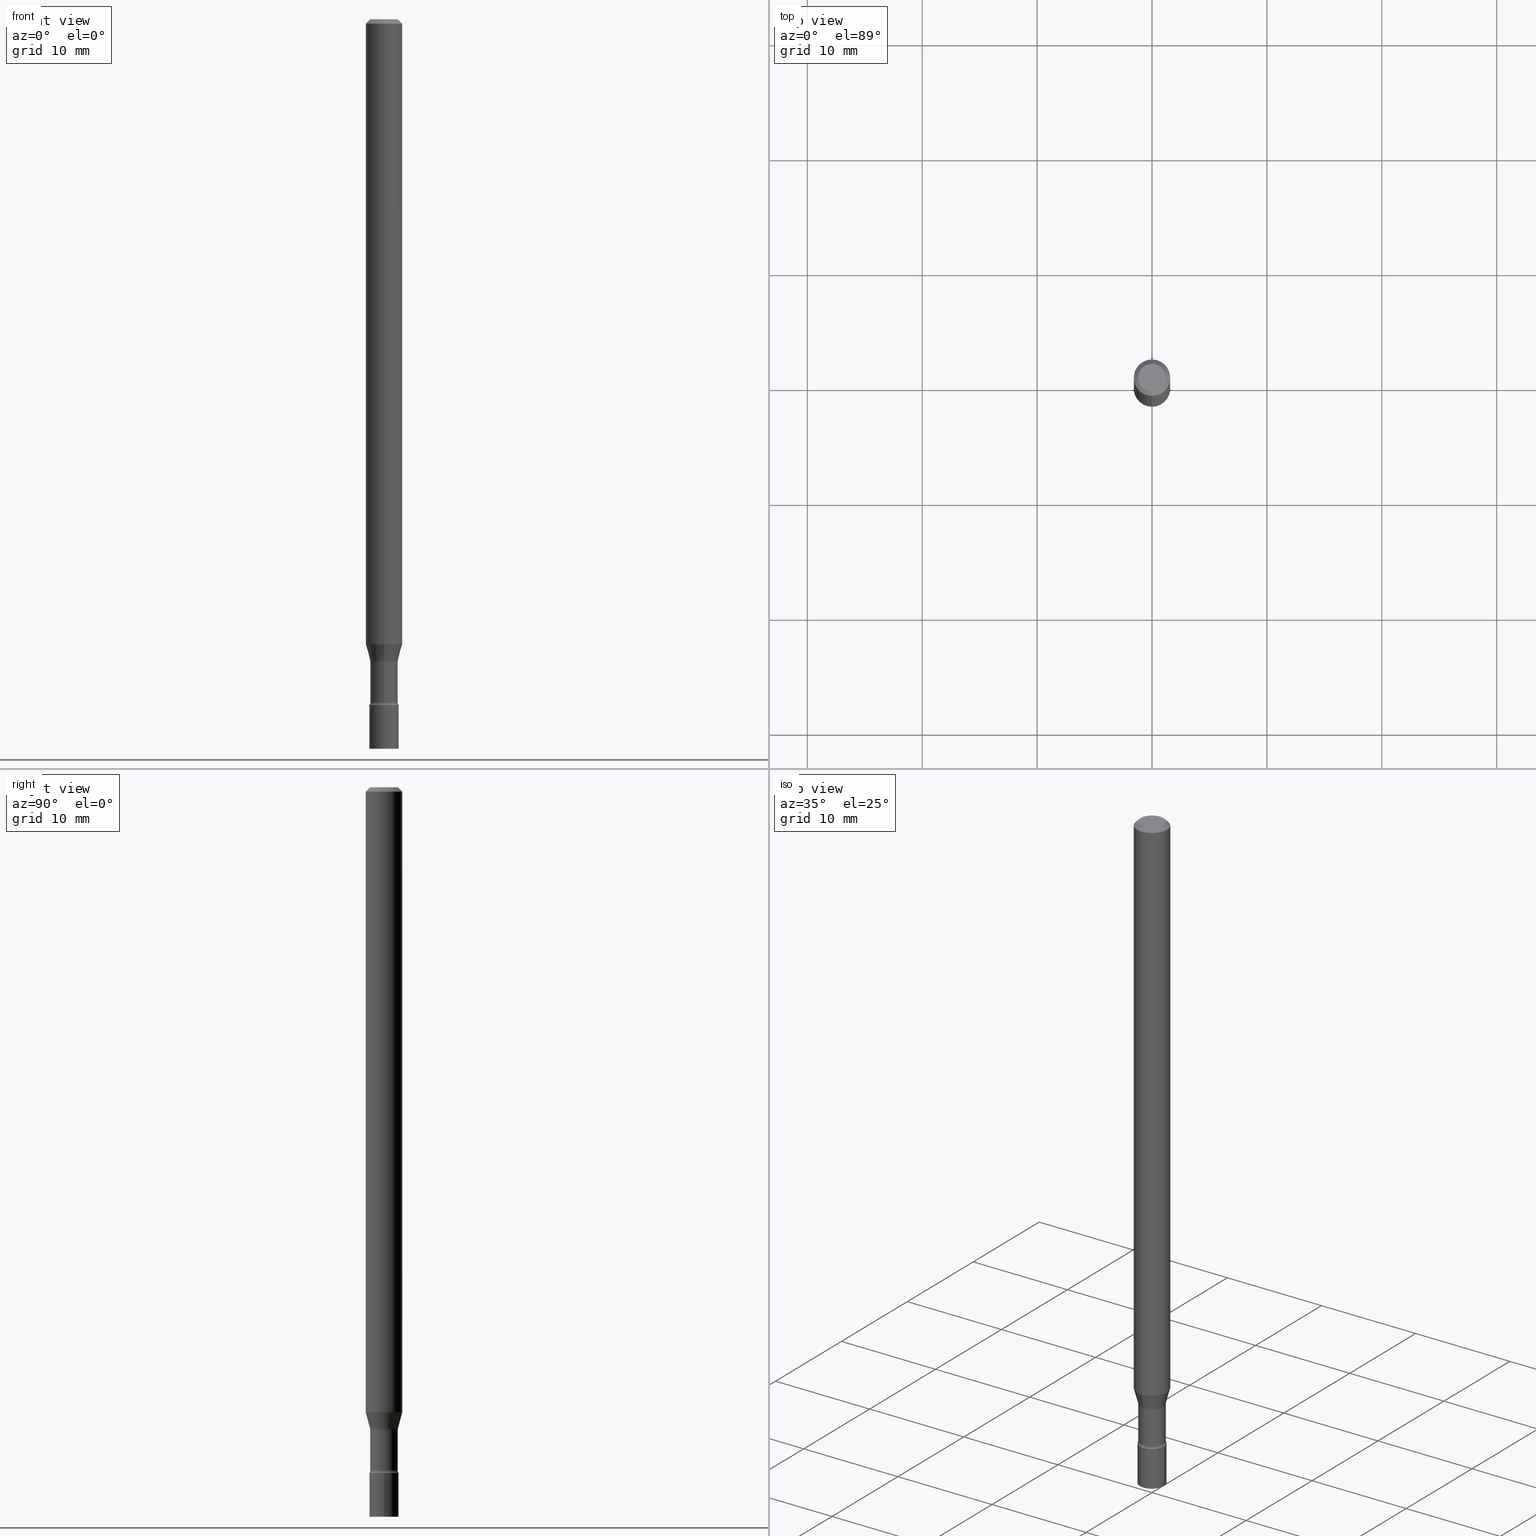
[diagram: canonical four-view strip — front | top / right | iso, engineering-drawing reading convention]
A machine part, canonical four-view strip (front | top / right | iso — engineering-drawing reading convention). The complete STEP part file that produces these views, byte-faithful:
ISO-10303-21;
HEADER;
FILE_DESCRIPTION (( 'STEP AP203' ),
    '1' );
FILE_NAME ('03531.STEP',
    '2024-03-08T21:41:14',
    ( '' ),
    ( '' ),
    'SwSTEP 2.0',
    'SolidWorks 2023',
    '' );
FILE_SCHEMA (( 'CONFIG_CONTROL_DESIGN' ));
ENDSEC;

DATA;
#1 = PERSON_AND_ORGANIZATION_ROLE ( 'design_supplier' ) ;
#2 = MANIFOLD_SOLID_BREP ( 'Body-Move/Copy2[1]', #45 ) ;
#3 = AXIS2_PLACEMENT_3D ( 'NONE', #288, #335, #298 ) ;
#4 = CC_DESIGN_APPROVAL ( #177, ( #82 ) ) ;
#5 = PRODUCT_RELATED_PRODUCT_CATEGORY ( 'detail', '', ( #251 ) ) ;
#6 = EDGE_CURVE ( 'NONE', #271, #214, #404, .T. ) ;
#7 = DIRECTION ( 'NONE',  ( 6.982962677686265922E-15, 1.000000000000000000, -3.483106191921935554E-15 ) ) ;
#8 = CYLINDRICAL_SURFACE ( 'NONE', #212, 0.04699999999999999317 ) ;
#9 = DIRECTION ( 'NONE',  ( 1.000000000000000000, -6.982962677686274599E-15, 0.000000000000000000 ) ) ;
#10 = CC_DESIGN_PERSON_AND_ORGANIZATION_ASSIGNMENT ( #473, #1, ( #82 ) ) ;
#11 = CONICAL_SURFACE ( 'NONE', #372, 0.04751111260566398542, 0.2617993877991498519 ) ;
#12 = CIRCLE ( 'NONE', #505, 0.04699999999999998623 ) ;
#13 = DIRECTION ( 'NONE',  ( -6.982962677686265922E-15, -1.000000000000000000, 3.491506315456644838E-15 ) ) ;
#14 = FACE_OUTER_BOUND ( 'NONE', #158, .T. ) ;
#15 = CARTESIAN_POINT ( 'NONE',  ( -0.05000000000000000278, -8.111570878814577955E-15, -2.500000000000000000 ) ) ;
#16 = FACE_OUTER_BOUND ( 'NONE', #520, .T. ) ;
#17 = ORIENTED_EDGE ( 'NONE', *, *, #399, .T. ) ;
#18 = DIRECTION ( 'NONE',  ( -6.982962677686265133E-15, -1.000000000000000000, 5.749913744050247464E-15 ) ) ;
#19 = CARTESIAN_POINT ( 'NONE',  ( 5.375328309131870760E-29, -7.674653851948160120E-15, -2.198092501787273001 ) ) ;
#20 = DIRECTION ( 'NONE',  ( 1.000000000000000000, -6.982962677686267499E-15, 4.876176775795936353E-29 ) ) ;
#21 = ORIENTED_EDGE ( 'NONE', *, *, #6, .F. ) ;
#22 = EDGE_CURVE ( 'NONE', #483, #386, #268, .T. ) ;
#23 = CARTESIAN_POINT ( 'NONE',  ( 3.375867592984003447E-16, 0.04751111260565630406, -2.198092501787273445 ) ) ;
#24 = CYLINDRICAL_SURFACE ( 'NONE', #407, 0.06250000000000000000 ) ;
#25 = CONICAL_SURFACE ( 'NONE', #262, 0.06250000000000000000, 0.7853981633974483900 ) ;
#26 = EDGE_LOOP ( 'NONE', ( #513, #510, #346, #275 ) ) ;
#27 = DIRECTION ( 'NONE',  ( -4.851104656540964275E-15, -0.7071067811865500152, -0.7071067811865450192 ) ) ;
#28 = PLANE ( 'NONE',  #465 ) ;
#29 = EDGE_CURVE ( 'NONE', #287, #137, #125, .T. ) ;
#30 = DIRECTION ( 'NONE',  ( -2.438088387897960049E-29, 3.491481338843145188E-15, 1.000000000000000000 ) ) ;
#31 = LENGTH_MEASURE_WITH_UNIT ( LENGTH_MEASURE( 0.02539999999999999897 ), #258 );
#32 = EDGE_CURVE ( 'NONE', #432, #306, #123, .T. ) ;
#33 = DIRECTION ( 'NONE',  ( -2.445451365109148725E-29, 3.491506315456644838E-15, 1.000000000000000000 ) ) ;
#34 = AXIS2_PLACEMENT_3D ( 'NONE', #496, #341, #9 ) ;
#35 = CC_DESIGN_APPROVAL ( #325, ( #512 ) ) ;
#36 = PERSON_AND_ORGANIZATION_ROLE ( 'classification_officer' ) ;
#37 = EDGE_CURVE ( 'NONE', #432, #283, #102, .T. ) ;
#38 = PERSON_AND_ORGANIZATION ( #265, #190 ) ;
#39 = CARTESIAN_POINT ( 'NONE',  ( 3.840629472727447874E-16, 0.04749999999999999362, -1.947592745229183872E-16 ) ) ;
#40 = ORIENTED_EDGE ( 'NONE', *, *, #226, .F. ) ;
#41 = ADVANCED_FACE ( 'NONE', ( #184 ), #462, .T. ) ;
#42 = COORDINATED_UNIVERSAL_TIME_OFFSET ( 5, 0, .BEHIND. ) ;
#43 = ORIENTED_EDGE ( 'NONE', *, *, #451, .T. ) ;
#44 = ORIENTED_EDGE ( 'NONE', *, *, #272, .F. ) ;
#45 = CLOSED_SHELL ( 'NONE', ( #118, #41, #354, #223 ) ) ;
#46 = DIRECTION ( 'NONE',  ( -6.982962677686265922E-15, -1.000000000000000000, 3.491506315456644838E-15 ) ) ;
#47 = CIRCLE ( 'NONE', #197, 0.05000000000000000278 ) ;
#48 = DATE_TIME_ROLE ( 'creation_date' ) ;
#49 = CARTESIAN_POINT ( 'NONE',  ( 0.000000000000000000, 0.000000000000000000, 0.000000000000000000 ) ) ;
#50 = CYLINDRICAL_SURFACE ( 'NONE', #174, 0.06250000000000000000 ) ;
#51 = CARTESIAN_POINT ( 'NONE',  ( 5.375328309131870760E-29, -7.674653851948160120E-15, -2.198092501787273001 ) ) ;
#52 = CARTESIAN_POINT ( 'NONE',  ( 4.440892098500625669E-16, 0.06250000000000000000, -2.182191447160403024E-16 ) ) ;
#53 = ORIENTED_EDGE ( 'NONE', *, *, #434, .T. ) ;
#54 = CIRCLE ( 'NONE', #132, 0.06250000000000000000 ) ;
#55 = EDGE_CURVE ( 'NONE', #448, #474, #387, .T. ) ;
#56 = CARTESIAN_POINT ( 'NONE',  ( 0.000000000000000000, 0.000000000000000000, 0.000000000000000000 ) ) ;
#57 = DIRECTION ( 'NONE',  ( 2.438088387897960049E-29, -3.491481338843145188E-15, -1.000000000000000000 ) ) ;
#58 = FACE_OUTER_BOUND ( 'NONE', #91, .T. ) ;
#59 = ORIENTED_EDGE ( 'NONE', *, *, #296, .F. ) ;
#60 = DIRECTION ( 'NONE',  ( -6.982962677686265922E-15, -1.000000000000000000, 5.812442539711200167E-15 ) ) ;
#61 = CIRCLE ( 'NONE', #315, 0.01500000000000002720 ) ;
#62 = AXIS2_PLACEMENT_3D ( 'NONE', #78, #142, #463 ) ;
#63 = DIMENSIONAL_EXPONENTS ( 1.000000000000000000, 0.000000000000000000, 0.000000000000000000, 0.000000000000000000, 0.000000000000000000, 0.000000000000000000, 0.000000000000000000 ) ;
#64 = DIRECTION ( 'NONE',  ( -6.982962677686265922E-15, -1.000000000000000000, 3.483106191921935554E-15 ) ) ;
#65 = CYLINDRICAL_SURFACE ( 'NONE', #113, 0.04699999999999999317 ) ;
#66 = DIRECTION ( 'NONE',  ( -6.982962677686265922E-15, -1.000000000000000000, 4.370956789862821150E-15 ) ) ;
#67 = DIRECTION ( 'NONE',  ( -6.982962677686265133E-15, -1.000000000000000000, 5.749913744050247464E-15 ) ) ;
#68 = EDGE_CURVE ( 'NONE', #306, #432, #480, .T. ) ;
#69 = DIRECTION ( 'NONE',  ( -6.982962677686265922E-15, -1.000000000000000000, 5.812442539711200167E-15 ) ) ;
#70 = VERTEX_POINT ( 'NONE', #349 ) ;
#71 = CONICAL_SURFACE ( 'NONE', #309, 0.06250000000000000000, 0.7853981633974483900 ) ;
#72 = DIRECTION ( 'NONE',  ( -2.445468806185136597E-29, 3.491481338843145583E-15, 1.000000000000000000 ) ) ;
#73 = SECURITY_CLASSIFICATION ( '', '', #435 ) ;
#74 = EDGE_CURVE ( 'NONE', #214, #355, #344, .T. ) ;
#75 = LINE ( 'NONE', #152, #109 ) ;
#76 = CARTESIAN_POINT ( 'NONE',  ( 5.384822249939303966E-29, -7.688208876906198514E-15, -2.201974787463810923 ) ) ;
#77 = CC_DESIGN_PERSON_AND_ORGANIZATION_ASSIGNMENT ( #281, #229, ( #251 ) ) ;
#78 = CARTESIAN_POINT ( 'NONE',  ( 5.384822249939303966E-29, -7.688208876906198514E-15, -2.201974787463810923 ) ) ;
#79 = EDGE_CURVE ( 'NONE', #128, #355, #75, .T. ) ;
#80 = CARTESIAN_POINT ( 'NONE',  ( 5.746851694535070554E-29, -8.204981146281391784E-15, -2.350000000000000089 ) ) ;
#81 = APPROVAL_ROLE ( '' ) ;
#82 = PRODUCT_DEFINITION_FORMATION_WITH_SPECIFIED_SOURCE ( 'ANY', '', #251, .NOT_KNOWN. ) ;
#83 = ORIENTED_EDGE ( 'NONE', *, *, #74, .T. ) ;
#84 = VERTEX_POINT ( 'NONE', #264 ) ;
#85 = CARTESIAN_POINT ( 'NONE',  ( 5.724842475279404612E-29, -8.173557814231803142E-15, -2.341000000000000192 ) ) ;
#86 = CALENDAR_DATE ( 2024, 8, 3 ) ;
#87 = ORIENTED_EDGE ( 'NONE', *, *, #475, .F. ) ;
#88 = APPLICATION_PROTOCOL_DEFINITION ( 'international standard', 'config_control_design', 1994, #322 ) ;
#89 = FACE_OUTER_BOUND ( 'NONE', #293, .T. ) ;
#90 = AXIS2_PLACEMENT_3D ( 'NONE', #94, #408, #99 ) ;
#91 = EDGE_LOOP ( 'NONE', ( #108, #153, #324, #144 ) ) ;
#92 = VERTEX_POINT ( 'NONE', #39 ) ;
#93 = EDGE_LOOP ( 'NONE', ( #21, #105, #493, #332 ) ) ;
#94 = CARTESIAN_POINT ( 'NONE',  ( 5.746810708006499965E-29, -8.205039841323115903E-15, -2.350000000000000089 ) ) ;
#95 = CIRCLE ( 'NONE', #454, 0.04749999999999999362 ) ;
#96 = LINE ( 'NONE', #215, #504 ) ;
#97 = CARTESIAN_POINT ( 'NONE',  ( 0.000000000000000000, 0.000000000000000000, 0.000000000000000000 ) ) ;
#98 = PLANE ( 'NONE',  #392 ) ;
#99 = DIRECTION ( 'NONE',  ( -6.982962677686265133E-15, -1.000000000000000000, 5.463695987328526437E-15 ) ) ;
#100 = LINE ( 'NONE', #176, #175 ) ;
#101 = LOCAL_TIME ( 16, 41, 14.00000000000000000, #150 ) ;
#102 = LINE ( 'NONE', #23, #202 ) ;
#103 = CARTESIAN_POINT ( 'NONE',  ( 0.000000000000000000, 0.000000000000000000, 0.000000000000000000 ) ) ;
#104 = ORIENTED_EDGE ( 'NONE', *, *, #488, .F. ) ;
#105 = ORIENTED_EDGE ( 'NONE', *, *, #286, .T. ) ;
#106 = CARTESIAN_POINT ( 'NONE',  ( 5.384860654748895550E-29, -7.688153879032997927E-15, -2.201974787463810923 ) ) ;
#107 = ADVANCED_FACE ( 'NONE', ( #414 ), #65, .T. ) ;
#108 = ORIENTED_EDGE ( 'NONE', *, *, #232, .T. ) ;
#109 = VECTOR ( 'NONE', #192, 39.37007874015748143 ) ;
#110 = CARTESIAN_POINT ( 'NONE',  ( 3.668177047663730198E-31, -5.237259473184978080E-17, -0.01500000000000003067 ) ) ;
#111 = DIRECTION ( 'NONE',  ( -6.982962677686265922E-15, -1.000000000000000000, 3.491506315456644838E-15 ) ) ;
#112 = CALENDAR_DATE ( 2024, 8, 3 ) ;
#113 = AXIS2_PLACEMENT_3D ( 'NONE', #97, #210, #173 ) ;
#114 = AXIS2_PLACEMENT_3D ( 'NONE', #19, #263, #180 ) ;
#115 = EDGE_LOOP ( 'NONE', ( #135, #320 ) ) ;
#116 = DIRECTION ( 'NONE',  ( 1.000000000000000000, 0.000000000000000000, 0.000000000000000000 ) ) ;
#117 = DESIGN_CONTEXT ( 'detailed design', #322, 'design' ) ;
#118 = ADVANCED_FACE ( 'NONE', ( #58 ), #127, .T. ) ;
#119 = ORIENTED_EDGE ( 'NONE', *, *, #434, .F. ) ;
#120 = CARTESIAN_POINT ( 'NONE',  ( 0.000000000000000000, 0.000000000000000000, 0.000000000000000000 ) ) ;
#121 = ORIENTED_EDGE ( 'NONE', *, *, #475, .T. ) ;
#122 = FACE_OUTER_BOUND ( 'NONE', #360, .T. ) ;
#123 = CIRCLE ( 'NONE', #189, 0.04751111260566398542 ) ;
#124 =( GEOMETRIC_REPRESENTATION_CONTEXT ( 3 ) GLOBAL_UNCERTAINTY_ASSIGNED_CONTEXT ( ( #273 ) ) GLOBAL_UNIT_ASSIGNED_CONTEXT ( ( #148, #237, #164 ) ) REPRESENTATION_CONTEXT ( 'NONE', 'WORKASPACE' ) );
#125 = LINE ( 'NONE', #284, #365 ) ;
#126 = DIRECTION ( 'NONE',  ( -2.445451365109148725E-29, 3.491506315456644838E-15, 1.000000000000000000 ) ) ;
#127 = CYLINDRICAL_SURFACE ( 'NONE', #252, 0.05000000000000000278 ) ;
#128 = VERTEX_POINT ( 'NONE', #375 ) ;
#129 = DIRECTION ( 'NONE',  ( 1.000000000000000000, -6.982962677686267499E-15, 4.876176775795936353E-29 ) ) ;
#130 = TOROIDAL_SURFACE ( 'NONE', #464, 0.06200000000000003425, 0.01500000000000004455 ) ;
#131 = CARTESIAN_POINT ( 'NONE',  ( 5.375328309131870760E-29, -7.674653851948160120E-15, -2.198092501787273001 ) ) ;
#132 = AXIS2_PLACEMENT_3D ( 'NONE', #416, #466, #66 ) ;
#133 = DIRECTION ( 'NONE',  ( -1.000000000000000000, 6.982962677686265922E-15, -4.883557194083112901E-29 ) ) ;
#134 = DIRECTION ( 'NONE',  ( -1.000000000000000000, 6.982962677686265922E-15, -4.883557194083112901E-29 ) ) ;
#135 = ORIENTED_EDGE ( 'NONE', *, *, #232, .F. ) ;
#136 = FACE_OUTER_BOUND ( 'NONE', #93, .T. ) ;
#137 = VERTEX_POINT ( 'NONE', #240 ) ;
#138 = ADVANCED_FACE ( 'NONE', ( #16 ), #336, .F. ) ;
#139 = CARTESIAN_POINT ( 'NONE',  ( 7.070466169225668055E-46, -1.009489603240264140E-31, -2.891272453872779785E-17 ) ) ;
#140 = AXIS2_PLACEMENT_3D ( 'NONE', #208, #134, #163 ) ;
#141 = DIRECTION ( 'NONE',  ( -6.982962677686265922E-15, -1.000000000000000000, 4.370956789862821150E-15 ) ) ;
#142 = DIRECTION ( 'NONE',  ( -2.445451365109148725E-29, 3.491506315456644838E-15, 1.000000000000000000 ) ) ;
#143 = ADVANCED_FACE ( 'NONE', ( #248 ), #71, .T. ) ;
#144 = ORIENTED_EDGE ( 'NONE', *, *, #79, .F. ) ;
#145 = CARTESIAN_POINT ( 'NONE',  ( 5.746851694535070554E-29, -8.204981146281391784E-15, -2.350000000000000089 ) ) ;
#146 = AXIS2_PLACEMENT_3D ( 'NONE', #331, #126, #64 ) ;
#147 = VECTOR ( 'NONE', #388, 39.37007874015748143 ) ;
#148 =( CONVERSION_BASED_UNIT ( 'INCH', #31 ) LENGTH_UNIT ( ) NAMED_UNIT ( #63 ) );
#149 = CARTESIAN_POINT ( 'NONE',  ( -3.491481338842559952E-16, -0.05000000000000822536, -2.349999999999999645 ) ) ;
#150 = COORDINATED_UNIVERSAL_TIME_OFFSET ( 5, 0, .BEHIND. ) ;
#151 = ADVANCED_FACE ( 'NONE', ( #14 ), #11, .T. ) ;
#152 = CARTESIAN_POINT ( 'NONE',  ( 0.05000000000000000278, -3.491481338843133848E-16, 2.438088387897968247E-30 ) ) ;
#153 = ORIENTED_EDGE ( 'NONE', *, *, #6, .T. ) ;
#154 = CALENDAR_DATE ( 2024, 8, 3 ) ;
#155 = CIRCLE ( 'NONE', #34, 0.05000000000000000278 ) ;
#156 = CC_DESIGN_SECURITY_CLASSIFICATION ( #73, ( #82 ) ) ;
#157 = ORIENTED_EDGE ( 'NONE', *, *, #369, .F. ) ;
#158 = EDGE_LOOP ( 'NONE', ( #491, #453, #104, #363 ) ) ;
#159 = ADVANCED_FACE ( 'NONE', ( #340 ), #98, .F. ) ;
#160 = PERSON_AND_ORGANIZATION_ROLE ( 'creator' ) ;
#161 = EDGE_LOOP ( 'NONE', ( #436, #353, #234, #87 ) ) ;
#162 = PERSON_AND_ORGANIZATION ( #265, #190 ) ;
#163 = DIRECTION ( 'NONE',  ( -6.982962677686264344E-15, -1.000000000000000000, 0.000000000000000000 ) ) ;
#164 =( NAMED_UNIT ( * ) SI_UNIT ( $, .STERADIAN. ) SOLID_ANGLE_UNIT ( ) );
#165 = AXIS2_PLACEMENT_3D ( 'NONE', #247, #455, #60 ) ;
#166 = ORIENTED_EDGE ( 'NONE', *, *, #399, .F. ) ;
#167 = ORIENTED_EDGE ( 'NONE', *, *, #445, .F. ) ;
#168 = CIRCLE ( 'NONE', #62, 0.04700000000000000705 ) ;
#169 = DIRECTION ( 'NONE',  ( -6.982962677686265133E-15, -1.000000000000000000, 5.749913744050247464E-15 ) ) ;
#170 = CARTESIAN_POINT ( 'NONE',  ( 3.491481338843744722E-16, 0.04999999999999128059, -2.500000000000000000 ) ) ;
#171 = CARTESIAN_POINT ( 'NONE',  ( -4.329436860164946253E-16, -0.06200000000000769479, -2.201974787463810923 ) ) ;
#172 = CARTESIAN_POINT ( 'NONE',  ( 3.446132268437058914E-16, 0.04699999999999181916, -2.341000000000000192 ) ) ;
#173 = DIRECTION ( 'NONE',  ( -6.982962677686266711E-15, -1.000000000000000000, 3.491506315456645233E-15 ) ) ;
#174 = AXIS2_PLACEMENT_3D ( 'NONE', #120, #323, #278 ) ;
#175 = VECTOR ( 'NONE', #339, 39.37007874015748143 ) ;
#176 = CARTESIAN_POINT ( 'NONE',  ( -4.364351673553916201E-16, -0.06250000000000000000, 2.182191447160403024E-16 ) ) ;
#177 = APPROVAL ( #509, 'UNSPECIFIED' ) ;
#178 = CARTESIAN_POINT ( 'NONE',  ( 4.440892098501151740E-16, 0.06249999999999255457, -2.142153212482682978 ) ) ;
#179 = EDGE_LOOP ( 'NONE', ( #249, #119 ) ) ;
#180 = DIRECTION ( 'NONE',  ( -6.982962677686265133E-15, -1.000000000000000000, 5.749913744050247464E-15 ) ) ;
#181 = CLOSED_SHELL ( 'NONE', ( #396, #107, #204, #319, #361, #151, #428, #196, #143, #159, #506, #138, #343, #307 ) ) ;
#182 = ORIENTED_EDGE ( 'NONE', *, *, #296, .T. ) ;
#183 = AXIS2_PLACEMENT_3D ( 'NONE', #110, #351, #499 ) ;
#184 = FACE_OUTER_BOUND ( 'NONE', #501, .T. ) ;
#185 = DIRECTION ( 'NONE',  ( -6.982962677686265922E-15, -1.000000000000000000, 3.491506315456645233E-15 ) ) ;
#186 = ORIENTED_EDGE ( 'NONE', *, *, #289, .T. ) ;
#187 = CARTESIAN_POINT ( 'NONE',  ( 5.375328309131870760E-29, -7.674653851948160120E-15, -2.198092501787273001 ) ) ;
#188 = CARTESIAN_POINT ( 'NONE',  ( 3.908379845742577100E-16, 0.04751111260565630406, -2.198092501787273445 ) ) ;
#189 = AXIS2_PLACEMENT_3D ( 'NONE', #51, #364, #169 ) ;
#190 = ORGANIZATION ( 'UNSPECIFIED', 'UNSPECIFIED', '' ) ;
#191 = CARTESIAN_POINT ( 'NONE',  ( 5.238531497738724756E-29, -7.479341470059026022E-15, -2.142153212482682534 ) ) ;
#192 = DIRECTION ( 'NONE',  ( -2.445468806185136877E-29, 3.491481338843145188E-15, 1.000000000000000000 ) ) ;
#193 = CC_DESIGN_DATE_AND_TIME_ASSIGNMENT ( #274, #48, ( #512 ) ) ;
#194 = APPROVAL_STATUS ( 'not_yet_approved' ) ;
#195 = PERSON_AND_ORGANIZATION ( #265, #190 ) ;
#196 = ADVANCED_FACE ( 'NONE', ( #122 ), #50, .T. ) ;
#197 = AXIS2_PLACEMENT_3D ( 'NONE', #420, #312, #350 ) ;
#198 = APPROVAL_DATE_TIME ( #427, #177 ) ;
#199 = ORIENTED_EDGE ( 'NONE', *, *, #37, .F. ) ;
#200 = ORIENTED_EDGE ( 'NONE', *, *, #314, .T. ) ;
#201 = CARTESIAN_POINT ( 'NONE',  ( -3.317683261006473026E-16, -0.04751111260567165984, -2.198092501787273001 ) ) ;
#202 = VECTOR ( 'NONE', #379, 39.37007874015748854 ) ;
#203 = CC_DESIGN_APPROVAL ( #492, ( #73 ) ) ;
#204 = ADVANCED_FACE ( 'NONE', ( #89 ), #130, .F. ) ;
#205 = DIRECTION ( 'NONE',  ( -2.445451365109148725E-29, 3.491506315456644838E-15, 1.000000000000000000 ) ) ;
#206 = EDGE_LOOP ( 'NONE', ( #199, #220, #477, #157 ) ) ;
#207 = CARTESIAN_POINT ( 'NONE',  ( 6.113672015462842613E-29, -8.728703347107864943E-15, -2.500000000000000000 ) ) ;
#208 = CARTESIAN_POINT ( 'NONE',  ( -4.329436860164914206E-16, -0.06200000000000820133, -2.340999999999999748 ) ) ;
#209 = FACE_OUTER_BOUND ( 'NONE', #277, .T. ) ;
#210 = DIRECTION ( 'NONE',  ( -2.445451365109148725E-29, 3.491506315456644838E-15, 1.000000000000000000 ) ) ;
#211 = AXIS2_PLACEMENT_3D ( 'NONE', #207, #409, #485 ) ;
#212 = AXIS2_PLACEMENT_3D ( 'NONE', #56, #205, #370 ) ;
#213 = VERTEX_POINT ( 'NONE', #279 ) ;
#214 = VERTEX_POINT ( 'NONE', #438 ) ;
#215 = CARTESIAN_POINT ( 'NONE',  ( -3.317683261006473026E-16, -0.04751111260567165984, -2.198092501787273001 ) ) ;
#216 = FACE_OUTER_BOUND ( 'NONE', #470, .T. ) ;
#217 = DIRECTION ( 'NONE',  ( -2.445468806185136597E-29, 3.491481338843145583E-15, 1.000000000000000000 ) ) ;
#218 = CARTESIAN_POINT ( 'NONE',  ( 5.724801645720516822E-29, -8.173616284484005646E-15, -2.341000000000000192 ) ) ;
#219 = VECTOR ( 'NONE', #244, 39.37007874015748143 ) ;
#220 = ORIENTED_EDGE ( 'NONE', *, *, #32, .T. ) ;
#221 = DIRECTION ( 'NONE',  ( 1.000000000000000000, -6.982962677686265922E-15, 4.876176775795935793E-29 ) ) ;
#222 = CARTESIAN_POINT ( 'NONE',  ( -3.281992458511971635E-16, -0.04700000000000816025, -2.340999999999999748 ) ) ;
#223 = ADVANCED_FACE ( 'NONE', ( #285 ), #516, .T. ) ;
#224 = CARTESIAN_POINT ( 'NONE',  ( 0.000000000000000000, 0.000000000000000000, 0.000000000000000000 ) ) ;
#225 = LINE ( 'NONE', #423, #147 ) ;
#226 = EDGE_CURVE ( 'NONE', #213, #474, #374, .T. ) ;
#227 = CIRCLE ( 'NONE', #3, 0.04749999999999999362 ) ;
#228 = CIRCLE ( 'NONE', #489, 0.05000000000000000278 ) ;
#229 = PERSON_AND_ORGANIZATION_ROLE ( 'design_owner' ) ;
#230 = DIRECTION ( 'NONE',  ( 0.000000000000000000, 0.000000000000000000, 1.000000000000000000 ) ) ;
#231 = EDGE_LOOP ( 'NONE', ( #186, #514, #257, #270 ) ) ;
#232 = EDGE_CURVE ( 'NONE', #128, #271, #439, .T. ) ;
#233 = APPROVAL_ROLE ( '' ) ;
#234 = ORIENTED_EDGE ( 'NONE', *, *, #383, .T. ) ;
#235 = APPROVAL_STATUS ( 'not_yet_approved' ) ;
#236 = AXIS2_PLACEMENT_3D ( 'NONE', #170, #57, #412 ) ;
#237 =( NAMED_UNIT ( * ) PLANE_ANGLE_UNIT ( ) SI_UNIT ( $, .RADIAN. ) );
#238 = DIRECTION ( 'NONE',  ( -1.807323732225327378E-15, -0.2588190451025177974, 0.9659258262890690894 ) ) ;
#239 = AXIS2_PLACEMENT_3D ( 'NONE', #305, #30, #221 ) ;
#240 = CARTESIAN_POINT ( 'NONE',  ( 3.339550858073043299E-16, 0.04699999999999231182, -2.201974787463811367 ) ) ;
#241 = AXIS2_PLACEMENT_3D ( 'NONE', #49, #230, #116 ) ;
#242 = EDGE_CURVE ( 'NONE', #306, #368, #96, .T. ) ;
#243 = CARTESIAN_POINT ( 'NONE',  ( -3.281992458512545038E-16, -0.04699999999999999317, 1.641007968264622993E-16 ) ) ;
#244 = DIRECTION ( 'NONE',  ( -2.445468806185136877E-29, 3.491481338843145188E-15, 1.000000000000000000 ) ) ;
#245 = PRODUCT_DEFINITION_SHAPE ( 'NONE', 'NONE',  #512 ) ;
#246 = CC_DESIGN_PERSON_AND_ORGANIZATION_ASSIGNMENT ( #195, #313, ( #82 ) ) ;
#247 = CARTESIAN_POINT ( 'NONE',  ( 5.724801645720516822E-29, -8.173616284484005646E-15, -2.341000000000000192 ) ) ;
#248 = FACE_OUTER_BOUND ( 'NONE', #486, .T. ) ;
#249 = ORIENTED_EDGE ( 'NONE', *, *, #314, .F. ) ;
#250 = CARTESIAN_POINT ( 'NONE',  ( 0.05000000000000000278, -8.554129280165706697E-15, -2.350000000000000089 ) ) ;
#251 = PRODUCT ( '03531', '03531', '', ( #478 ) ) ;
#252 = AXIS2_PLACEMENT_3D ( 'NONE', #103, #217, #20 ) ;
#253 = LOCAL_TIME ( 16, 41, 14.00000000000000000, #401 ) ;
#254 = ORIENTED_EDGE ( 'NONE', *, *, #383, .F. ) ;
#255 = CARTESIAN_POINT ( 'NONE',  ( 4.405364961713195510E-16, 0.06199999999999186023, -2.341000000000000192 ) ) ;
#256 = DIRECTION ( 'NONE',  ( -2.445451365109148725E-29, 3.491506315456644838E-15, 1.000000000000000000 ) ) ;
#257 = ORIENTED_EDGE ( 'NONE', *, *, #517, .F. ) ;
#258 =( LENGTH_UNIT ( ) NAMED_UNIT ( * ) SI_UNIT ( $, .METRE. ) );
#259 = ORIENTED_EDGE ( 'NONE', *, *, #472, .T. ) ;
#260 = CARTESIAN_POINT ( 'NONE',  ( -3.773273898774340269E-16, -0.04749999999999999362, 1.369338254454628408E-16 ) ) ;
#261 = APPLICATION_CONTEXT ( 'configuration controlled 3d designs of mechanical parts and assemblies' ) ;
#262 = AXIS2_PLACEMENT_3D ( 'NONE', #411, #367, #7 ) ;
#263 = DIRECTION ( 'NONE',  ( -2.445451365109148725E-29, 3.491506315456644838E-15, 1.000000000000000000 ) ) ;
#264 = CARTESIAN_POINT ( 'NONE',  ( -3.281992458512006641E-16, -0.04700000000000769534, -2.201974787463810923 ) ) ;
#265 = PERSON ( 'UNSPECIFIED', 'UNSPECIFIED', 'UNSPECIFIED', ('UNSPECIFIED'), ('UNSPECIFIED'), ('UNSPECIFIED') ) ;
#266 = DIRECTION ( 'NONE',  ( 1.000000000000000000, -7.105427357601001070E-15, 4.926315814417380521E-29 ) ) ;
#267 = EDGE_CURVE ( 'NONE', #483, #84, #444, .T. ) ;
#268 = CIRCLE ( 'NONE', #140, 0.01500000000000005322 ) ;
#269 = AXIS2_PLACEMENT_3D ( 'NONE', #106, #342, #111 ) ;
#270 = ORIENTED_EDGE ( 'NONE', *, *, #267, .F. ) ;
#271 = VERTEX_POINT ( 'NONE', #15 ) ;
#272 = EDGE_CURVE ( 'NONE', #306, #84, #61, .T. ) ;
#273 = UNCERTAINTY_MEASURE_WITH_UNIT (LENGTH_MEASURE( 1.000000000000000082E-05 ), #148, 'distance_accuracy_value', 'NONE');
#274 = DATE_AND_TIME ( #154, #385 ) ;
#275 = ORIENTED_EDGE ( 'NONE', *, *, #517, .T. ) ;
#276 = DATE_AND_TIME ( #112, #430 ) ;
#277 = EDGE_LOOP ( 'NONE', ( #433, #318, #418, #457 ) ) ;
#278 = DIRECTION ( 'NONE',  ( -6.982962677686265922E-15, -1.000000000000000000, 3.491506315456644838E-15 ) ) ;
#279 = CARTESIAN_POINT ( 'NONE',  ( 4.440892098501153712E-16, 0.06249999999999995837, -0.01500000000000024751 ) ) ;
#280 = VECTOR ( 'NONE', #377, 39.37007874015748143 ) ;
#281 = PERSON_AND_ORGANIZATION ( #265, #190 ) ;
#282 = CIRCLE ( 'NONE', #345, 0.01500000000000003587 ) ;
#283 = VERTEX_POINT ( 'NONE', #178 ) ;
#284 = CARTESIAN_POINT ( 'NONE',  ( 3.339550858072469895E-16, 0.04699999999999999317, -1.641007968264622993E-16 ) ) ;
#285 = FACE_OUTER_BOUND ( 'NONE', #115, .T. ) ;
#286 = EDGE_CURVE ( 'NONE', #271, #128, #155, .T. ) ;
#287 = VERTEX_POINT ( 'NONE', #172 ) ;
#288 = CARTESIAN_POINT ( 'NONE',  ( 7.070466169225668055E-46, -1.009489603240264140E-31, -2.891272453872779785E-17 ) ) ;
#289 = EDGE_CURVE ( 'NONE', #483, #287, #326, .T. ) ;
#290 = DIRECTION ( 'NONE',  ( -2.445468806185136597E-29, 3.491481338843145583E-15, 1.000000000000000000 ) ) ;
#291 = AXIS2_PLACEMENT_3D ( 'NONE', #410, #389, #406 ) ;
#292 = AXIS2_PLACEMENT_3D ( 'NONE', #497, #266, #503 ) ;
#293 = EDGE_LOOP ( 'NONE', ( #167, #17, #53, #330 ) ) ;
#294 = FACE_OUTER_BOUND ( 'NONE', #26, .T. ) ;
#295 = ORIENTED_EDGE ( 'NONE', *, *, #55, .F. ) ;
#296 = EDGE_CURVE ( 'NONE', #92, #448, #95, .T. ) ;
#297 = CYLINDRICAL_SURFACE ( 'NONE', #498, 0.05000000000000000278 ) ;
#298 = DIRECTION ( 'NONE',  ( -6.982962677686266711E-15, -1.000000000000000000, 3.491506315456644838E-15 ) ) ;
#299 = TOROIDAL_SURFACE ( 'NONE', #384, 0.06200000000000000649, 0.01500000000000002720 ) ;
#300 = APPROVAL_PERSON_ORGANIZATION ( #162, #492, #233 ) ;
#301 = DIRECTION ( 'NONE',  ( 6.982962677686265922E-15, 1.000000000000000000, -3.483106191921935554E-15 ) ) ;
#302 = DIRECTION ( 'NONE',  ( -2.445451365109147884E-29, 3.491506315456645233E-15, 1.000000000000000000 ) ) ;
#303 = EDGE_CURVE ( 'NONE', #448, #92, #227, .T. ) ;
#304 = ORIENTED_EDGE ( 'NONE', *, *, #310, .F. ) ;
#305 = CARTESIAN_POINT ( 'NONE',  ( 5.746851694535070554E-29, -8.204981146281391784E-15, -2.350000000000000089 ) ) ;
#306 = VERTEX_POINT ( 'NONE', #201 ) ;
#307 = ADVANCED_FACE ( 'NONE', ( #294 ), #299, .F. ) ;
#308 = CARTESIAN_POINT ( 'NONE',  ( -4.364351673553390129E-16, -0.06250000000000743849, -2.142153212482682090 ) ) ;
#309 = AXIS2_PLACEMENT_3D ( 'NONE', #378, #376, #301 ) ;
#310 = EDGE_CURVE ( 'NONE', #283, #213, #405, .T. ) ;
#311 = DIRECTION ( 'NONE',  ( 1.000000000000000000, -6.982962677686274599E-15, 0.000000000000000000 ) ) ;
#312 = DIRECTION ( 'NONE',  ( -2.445451365109148725E-29, 3.491506315456644838E-15, 1.000000000000000000 ) ) ;
#313 = PERSON_AND_ORGANIZATION_ROLE ( 'creator' ) ;
#314 = EDGE_CURVE ( 'NONE', #386, #70, #440, .T. ) ;
#315 = AXIS2_PLACEMENT_3D ( 'NONE', #171, #133, #371 ) ;
#316 = CIRCLE ( 'NONE', #292, 0.01500000000000002720 ) ;
#317 = APPROVAL_ROLE ( '' ) ;
#318 = ORIENTED_EDGE ( 'NONE', *, *, #445, .T. ) ;
#319 = ADVANCED_FACE ( 'NONE', ( #487 ), #25, .T. ) ;
#320 = ORIENTED_EDGE ( 'NONE', *, *, #286, .F. ) ;
#321 = COORDINATED_UNIVERSAL_TIME_OFFSET ( 5, 0, .BEHIND. ) ;
#322 = APPLICATION_CONTEXT ( 'configuration controlled 3d designs of mechanical parts and assemblies' ) ;
#323 = DIRECTION ( 'NONE',  ( -2.445451365109148725E-29, 3.491506315456644838E-15, 1.000000000000000000 ) ) ;
#324 = ORIENTED_EDGE ( 'NONE', *, *, #472, .F. ) ;
#325 = APPROVAL ( #235, 'UNSPECIFIED' ) ;
#326 = CIRCLE ( 'NONE', #165, 0.04699999999999998623 ) ;
#327 = DATE_AND_TIME ( #395, #253 ) ;
#328 = LOCAL_TIME ( 16, 41, 14.00000000000000000, #42 ) ;
#329 = ORIENTED_EDGE ( 'NONE', *, *, #303, .T. ) ;
#330 = ORIENTED_EDGE ( 'NONE', *, *, #22, .F. ) ;
#331 = CARTESIAN_POINT ( 'NONE',  ( 3.668177047663730198E-31, -5.237259473184978080E-17, -0.01500000000000003067 ) ) ;
#332 = ORIENTED_EDGE ( 'NONE', *, *, #74, .F. ) ;
#333 = DIRECTION ( 'NONE',  ( -2.445451365109148725E-29, 3.491506315456644838E-15, 1.000000000000000000 ) ) ;
#334 = CC_DESIGN_PERSON_AND_ORGANIZATION_ASSIGNMENT ( #402, #160, ( #512 ) ) ;
#335 = DIRECTION ( 'NONE',  ( -2.445451365109148725E-29, 3.491506315456644838E-15, 1.000000000000000000 ) ) ;
#336 = TOROIDAL_SURFACE ( 'NONE', #291, 0.06200000000000003425, 0.01500000000000004455 ) ;
#337 = TOROIDAL_SURFACE ( 'NONE', #269, 0.06200000000000000649, 0.01500000000000002720 ) ;
#338 = EDGE_LOOP ( 'NONE', ( #182, #329 ) ) ;
#339 = DIRECTION ( 'NONE',  ( -2.445451365109148725E-29, 3.491506315456645233E-15, 1.000000000000000000 ) ) ;
#340 = FACE_OUTER_BOUND ( 'NONE', #338, .T. ) ;
#341 = DIRECTION ( 'NONE',  ( -2.445468806185136597E-29, 3.491481338843145583E-15, 1.000000000000000000 ) ) ;
#342 = DIRECTION ( 'NONE',  ( -2.445451365109148725E-29, 3.491506315456644838E-15, 1.000000000000000000 ) ) ;
#343 = ADVANCED_FACE ( 'NONE', ( #209 ), #8, .T. ) ;
#344 = CIRCLE ( 'NONE', #515, 0.05000000000000000278 ) ;
#345 = AXIS2_PLACEMENT_3D ( 'NONE', #255, #500, #380 ) ;
#346 = ORIENTED_EDGE ( 'NONE', *, *, #272, .T. ) ;
#347 = FACE_OUTER_BOUND ( 'NONE', #206, .T. ) ;
#348 = EDGE_CURVE ( 'NONE', #368, #474, #100, .T. ) ;
#349 = CARTESIAN_POINT ( 'NONE',  ( 3.552713678801076995E-16, 0.04999999999999181488, -2.350000000000000533 ) ) ;
#350 = DIRECTION ( 'NONE',  ( -6.982962677686265133E-15, -1.000000000000000000, 5.463695987328526437E-15 ) ) ;
#351 = DIRECTION ( 'NONE',  ( -2.445451365109148725E-29, 3.491506315456644838E-15, 1.000000000000000000 ) ) ;
#352 = COORDINATED_UNIVERSAL_TIME_OFFSET ( 5, 0, .BEHIND. ) ;
#353 = ORIENTED_EDGE ( 'NONE', *, *, #55, .T. ) ;
#354 = ADVANCED_FACE ( 'NONE', ( #136 ), #297, .T. ) ;
#355 = VERTEX_POINT ( 'NONE', #250 ) ;
#356 = VECTOR ( 'NONE', #27, 39.37007874015748143 ) ;
#357 = ORIENTED_EDGE ( 'NONE', *, *, #310, .T. ) ;
#358 = DIRECTION ( 'NONE',  ( -2.445451365109148725E-29, 3.491506315456644838E-15, 1.000000000000000000 ) ) ;
#359 = DATE_TIME_ROLE ( 'classification_date' ) ;
#360 = EDGE_LOOP ( 'NONE', ( #304, #479, #381, #40 ) ) ;
#361 = ADVANCED_FACE ( 'NONE', ( #447 ), #24, .T. ) ;
#362 = CALENDAR_DATE ( 2024, 8, 3 ) ;
#363 = ORIENTED_EDGE ( 'NONE', *, *, #242, .F. ) ;
#364 = DIRECTION ( 'NONE',  ( -2.445451365109148725E-29, 3.491506315456644838E-15, 1.000000000000000000 ) ) ;
#365 = VECTOR ( 'NONE', #443, 39.37007874015748143 ) ;
#366 = CIRCLE ( 'NONE', #456, 0.04700000000000000705 ) ;
#367 = DIRECTION ( 'NONE',  ( 2.445451365109148725E-29, -3.491506315456644838E-15, -1.000000000000000000 ) ) ;
#368 = VERTEX_POINT ( 'NONE', #308 ) ;
#369 = EDGE_CURVE ( 'NONE', #283, #368, #54, .T. ) ;
#370 = DIRECTION ( 'NONE',  ( -6.982962677686266711E-15, -1.000000000000000000, 3.491506315456645233E-15 ) ) ;
#371 = DIRECTION ( 'NONE',  ( -6.982962677686267499E-15, -1.000000000000000000, 0.000000000000000000 ) ) ;
#372 = AXIS2_PLACEMENT_3D ( 'NONE', #131, #256, #67 ) ;
#373 = DIRECTION ( 'NONE',  ( -2.445451365109148725E-29, 3.491506315456644838E-15, 1.000000000000000000 ) ) ;
#374 = CIRCLE ( 'NONE', #146, 0.06250000000000000000 ) ;
#375 = CARTESIAN_POINT ( 'NONE',  ( 0.05000000000000000278, -9.077851480992178278E-15, -2.500000000000000000 ) ) ;
#376 = DIRECTION ( 'NONE',  ( 2.445451365109148725E-29, -3.491506315456644838E-15, -1.000000000000000000 ) ) ;
#377 = DIRECTION ( 'NONE',  ( -2.445451365109148725E-29, 3.491506315456645233E-15, 1.000000000000000000 ) ) ;
#378 = CARTESIAN_POINT ( 'NONE',  ( 3.668177047663730198E-31, -5.237259473184978080E-17, -0.01500000000000003067 ) ) ;
#379 = DIRECTION ( 'NONE',  ( 1.839019923739597160E-15, 0.2588190451025245142, 0.9659258262890670910 ) ) ;
#380 = DIRECTION ( 'NONE',  ( 7.105427357601001859E-15, 1.000000000000000000, 0.000000000000000000 ) ) ;
#381 = ORIENTED_EDGE ( 'NONE', *, *, #348, .T. ) ;
#382 = DIRECTION ( 'NONE',  ( 1.000000000000000000, -6.982962677686274599E-15, 0.000000000000000000 ) ) ;
#383 = EDGE_CURVE ( 'NONE', #474, #213, #441, .T. ) ;
#384 = AXIS2_PLACEMENT_3D ( 'NONE', #494, #333, #13 ) ;
#385 = LOCAL_TIME ( 16, 41, 14.00000000000000000, #321 ) ;
#386 = VERTEX_POINT ( 'NONE', #149 ) ;
#387 = LINE ( 'NONE', #502, #356 ) ;
#388 = DIRECTION ( 'NONE',  ( 4.937700262164548042E-15, 0.7071067811865451302, -0.7071067811865499042 ) ) ;
#389 = DIRECTION ( 'NONE',  ( -2.445451365109148725E-29, 3.491506315456644838E-15, 1.000000000000000000 ) ) ;
#390 = CARTESIAN_POINT ( 'NONE',  ( 3.491481338843707252E-16, 0.04999999999999180100, -2.350000000000000533 ) ) ;
#391 = FACE_OUTER_BOUND ( 'NONE', #179, .T. ) ;
#392 = AXIS2_PLACEMENT_3D ( 'NONE', #417, #495, #403 ) ;
#393 = VECTOR ( 'NONE', #450, 39.37007874015748143 ) ;
#394 = DIRECTION ( 'NONE',  ( -2.445468806185136597E-29, 3.491481338843145583E-15, 1.000000000000000000 ) ) ;
#395 = CALENDAR_DATE ( 2024, 8, 3 ) ;
#396 = ADVANCED_FACE ( 'NONE', ( #216 ), #337, .F. ) ;
#397 = APPROVAL_DATE_TIME ( #327, #325 ) ;
#398 = ORIENTED_EDGE ( 'NONE', *, *, #32, .F. ) ;
#399 = EDGE_CURVE ( 'NONE', #287, #70, #282, .T. ) ;
#400 = ORIENTED_EDGE ( 'NONE', *, *, #289, .F. ) ;
#401 = COORDINATED_UNIVERSAL_TIME_OFFSET ( 5, 0, .BEHIND. ) ;
#402 = PERSON_AND_ORGANIZATION ( #265, #190 ) ;
#403 = DIRECTION ( 'NONE',  ( 6.982962677686265922E-15, 1.000000000000000000, -3.491506315456645233E-15 ) ) ;
#404 = LINE ( 'NONE', #481, #219 ) ;
#405 = LINE ( 'NONE', #52, #393 ) ;
#406 = DIRECTION ( 'NONE',  ( -6.982962677686265922E-15, -1.000000000000000000, 3.491506315456644838E-15 ) ) ;
#407 = AXIS2_PLACEMENT_3D ( 'NONE', #224, #460, #419 ) ;
#408 = DIRECTION ( 'NONE',  ( -2.445451365109148725E-29, 3.491506315456644838E-15, 1.000000000000000000 ) ) ;
#409 = DIRECTION ( 'NONE',  ( -2.445468806185136597E-29, 3.491481338843145583E-15, 1.000000000000000000 ) ) ;
#410 = CARTESIAN_POINT ( 'NONE',  ( 5.724842475279404612E-29, -8.173557814231803142E-15, -2.341000000000000192 ) ) ;
#411 = CARTESIAN_POINT ( 'NONE',  ( 3.668177047663730198E-31, -5.237259473184978080E-17, -0.01500000000000003067 ) ) ;
#412 = DIRECTION ( 'NONE',  ( -1.000000000000000000, 6.982962677686265922E-15, -4.876176775795935793E-29 ) ) ;
#413 = CIRCLE ( 'NONE', #471, 0.06250000000000000000 ) ;
#414 = FACE_OUTER_BOUND ( 'NONE', #231, .T. ) ;
#415 = ORIENTED_EDGE ( 'NONE', *, *, #348, .F. ) ;
#416 = CARTESIAN_POINT ( 'NONE',  ( 5.238531497738724756E-29, -7.479341470059026022E-15, -2.142153212482682534 ) ) ;
#417 = CARTESIAN_POINT ( 'NONE',  ( 3.316907271900976096E-16, 0.04749999999999999362, -1.803029122535545130E-16 ) ) ;
#418 = ORIENTED_EDGE ( 'NONE', *, *, #267, .T. ) ;
#419 = DIRECTION ( 'NONE',  ( -6.982962677686265922E-15, -1.000000000000000000, 3.491506315456644838E-15 ) ) ;
#420 = CARTESIAN_POINT ( 'NONE',  ( 5.746810708006499965E-29, -8.205039841323115903E-15, -2.350000000000000089 ) ) ;
#421 = APPROVAL_PERSON_ORGANIZATION ( #442, #177, #81 ) ;
#422 = EDGE_LOOP ( 'NONE', ( #449, #357, #254, #415 ) ) ;
#423 = CARTESIAN_POINT ( 'NONE',  ( 4.364351673553919652E-16, 0.06249999999999995143, -0.01500000000000024751 ) ) ;
#424 = DIRECTION ( 'NONE',  ( -2.445451365109148725E-29, 3.491506315456644838E-15, 1.000000000000000000 ) ) ;
#425 = CARTESIAN_POINT ( 'NONE',  ( -4.364351673553912750E-16, -0.06250000000000005551, -0.01499999999999981209 ) ) ;
#426 = ADVANCED_BREP_SHAPE_REPRESENTATION ( '03531', ( #2, #508, #241 ), #124 ) ;
#427 = DATE_AND_TIME ( #362, #328 ) ;
#428 = ADVANCED_FACE ( 'NONE', ( #347 ), #446, .T. ) ;
#429 = AXIS2_PLACEMENT_3D ( 'NONE', #187, #424, #18 ) ;
#430 = LOCAL_TIME ( 16, 41, 14.00000000000000000, #352 ) ;
#431 = APPROVAL_DATE_TIME ( #276, #492 ) ;
#432 = VERTEX_POINT ( 'NONE', #188 ) ;
#433 = ORIENTED_EDGE ( 'NONE', *, *, #29, .F. ) ;
#434 = EDGE_CURVE ( 'NONE', #70, #386, #47, .T. ) ;
#435 = SECURITY_CLASSIFICATION_LEVEL ( 'unclassified' ) ;
#436 = ORIENTED_EDGE ( 'NONE', *, *, #303, .F. ) ;
#437 = SHAPE_DEFINITION_REPRESENTATION ( #245, #426 ) ;
#438 = CARTESIAN_POINT ( 'NONE',  ( -0.05000000000000000278, -8.111570878814577955E-15, -2.350000000000000089 ) ) ;
#439 = CIRCLE ( 'NONE', #211, 0.05000000000000000278 ) ;
#440 = CIRCLE ( 'NONE', #90, 0.05000000000000000278 ) ;
#441 = CIRCLE ( 'NONE', #183, 0.06250000000000000000 ) ;
#442 = PERSON_AND_ORGANIZATION ( #265, #190 ) ;
#443 = DIRECTION ( 'NONE',  ( -2.445451365109148725E-29, 3.491506315456645233E-15, 1.000000000000000000 ) ) ;
#444 = LINE ( 'NONE', #243, #280 ) ;
#445 = EDGE_CURVE ( 'NONE', #287, #483, #12, .T. ) ;
#446 = CONICAL_SURFACE ( 'NONE', #114, 0.04751111260566398542, 0.2617993877991498519 ) ;
#447 = FACE_OUTER_BOUND ( 'NONE', #422, .T. ) ;
#448 = VERTEX_POINT ( 'NONE', #260 ) ;
#449 = ORIENTED_EDGE ( 'NONE', *, *, #488, .T. ) ;
#450 = DIRECTION ( 'NONE',  ( -2.445451365109148725E-29, 3.491506315456645233E-15, 1.000000000000000000 ) ) ;
#451 = EDGE_CURVE ( 'NONE', #432, #137, #316, .T. ) ;
#452 = CARTESIAN_POINT ( 'NONE',  ( 0.000000000000000000, 0.000000000000000000, 0.000000000000000000 ) ) ;
#453 = ORIENTED_EDGE ( 'NONE', *, *, #37, .T. ) ;
#454 = AXIS2_PLACEMENT_3D ( 'NONE', #139, #373, #490 ) ;
#455 = DIRECTION ( 'NONE',  ( -2.445451365109148725E-29, 3.491506315456644838E-15, 1.000000000000000000 ) ) ;
#456 = AXIS2_PLACEMENT_3D ( 'NONE', #76, #458, #507 ) ;
#457 = ORIENTED_EDGE ( 'NONE', *, *, #468, .F. ) ;
#458 = DIRECTION ( 'NONE',  ( -2.445451365109148725E-29, 3.491506315456644838E-15, 1.000000000000000000 ) ) ;
#459 = CC_DESIGN_PERSON_AND_ORGANIZATION_ASSIGNMENT ( #511, #36, ( #73 ) ) ;
#460 = DIRECTION ( 'NONE',  ( -2.445451365109148725E-29, 3.491506315456644838E-15, 1.000000000000000000 ) ) ;
#461 = ORIENTED_EDGE ( 'NONE', *, *, #226, .T. ) ;
#462 = PLANE ( 'NONE',  #239 ) ;
#463 = DIRECTION ( 'NONE',  ( -6.982962677686265922E-15, -1.000000000000000000, 5.812442539711197800E-15 ) ) ;
#464 = AXIS2_PLACEMENT_3D ( 'NONE', #85, #358, #46 ) ;
#465 = AXIS2_PLACEMENT_3D ( 'NONE', #390, #302, #185 ) ;
#466 = DIRECTION ( 'NONE',  ( -2.445451365109148725E-29, 3.491506315456644838E-15, 1.000000000000000000 ) ) ;
#467 = DIRECTION ( 'NONE',  ( -2.445451365109148725E-29, 3.491506315456644838E-15, 1.000000000000000000 ) ) ;
#468 = EDGE_CURVE ( 'NONE', #137, #84, #168, .T. ) ;
#469 = DATE_AND_TIME ( #86, #101 ) ;
#470 = EDGE_LOOP ( 'NONE', ( #398, #43, #518, #44 ) ) ;
#471 = AXIS2_PLACEMENT_3D ( 'NONE', #191, #467, #141 ) ;
#472 = EDGE_CURVE ( 'NONE', #355, #214, #228, .T. ) ;
#473 = PERSON_AND_ORGANIZATION ( #265, #190 ) ;
#474 = VERTEX_POINT ( 'NONE', #425 ) ;
#475 = EDGE_CURVE ( 'NONE', #92, #213, #225, .T. ) ;
#476 = ORIENTED_EDGE ( 'NONE', *, *, #22, .T. ) ;
#477 = ORIENTED_EDGE ( 'NONE', *, *, #242, .T. ) ;
#478 = MECHANICAL_CONTEXT ( 'NONE', #261, 'mechanical' ) ;
#479 = ORIENTED_EDGE ( 'NONE', *, *, #369, .T. ) ;
#480 = CIRCLE ( 'NONE', #429, 0.04751111260566398542 ) ;
#481 = CARTESIAN_POINT ( 'NONE',  ( -0.05000000000000000278, 3.552713678800501127E-16, -2.459467545127453311E-30 ) ) ;
#482 = APPROVAL_PERSON_ORGANIZATION ( #38, #325, #317 ) ;
#483 = VERTEX_POINT ( 'NONE', #222 ) ;
#484 = CC_DESIGN_DATE_AND_TIME_ASSIGNMENT ( #469, #359, ( #73 ) ) ;
#485 = DIRECTION ( 'NONE',  ( 1.000000000000000000, -6.982962677686274599E-15, 0.000000000000000000 ) ) ;
#486 = EDGE_LOOP ( 'NONE', ( #295, #59, #121, #461 ) ) ;
#487 = FACE_OUTER_BOUND ( 'NONE', #161, .T. ) ;
#488 = EDGE_CURVE ( 'NONE', #368, #283, #413, .T. ) ;
#489 = AXIS2_PLACEMENT_3D ( 'NONE', #145, #72, #382 ) ;
#490 = DIRECTION ( 'NONE',  ( -6.982962677686266711E-15, -1.000000000000000000, 3.491506315456644838E-15 ) ) ;
#491 = ORIENTED_EDGE ( 'NONE', *, *, #68, .T. ) ;
#492 = APPROVAL ( #194, 'UNSPECIFIED' ) ;
#493 = ORIENTED_EDGE ( 'NONE', *, *, #79, .T. ) ;
#494 = CARTESIAN_POINT ( 'NONE',  ( 5.384860654748895550E-29, -7.688153879032997927E-15, -2.201974787463810923 ) ) ;
#495 = DIRECTION ( 'NONE',  ( 2.445451365109147884E-29, -3.491506315456645233E-15, -1.000000000000000000 ) ) ;
#496 = CARTESIAN_POINT ( 'NONE',  ( 6.113672015462842613E-29, -8.728703347107864943E-15, -2.500000000000000000 ) ) ;
#497 = CARTESIAN_POINT ( 'NONE',  ( 4.405364961713159518E-16, 0.06199999999999231126, -2.201974787463811367 ) ) ;
#498 = AXIS2_PLACEMENT_3D ( 'NONE', #452, #290, #129 ) ;
#499 = DIRECTION ( 'NONE',  ( -6.982962677686265922E-15, -1.000000000000000000, 3.483106191921935554E-15 ) ) ;
#500 = DIRECTION ( 'NONE',  ( 1.000000000000000000, -7.105427357601001070E-15, 4.926315814417380521E-29 ) ) ;
#501 = EDGE_LOOP ( 'NONE', ( #259, #83 ) ) ;
#502 = CARTESIAN_POINT ( 'NONE',  ( -4.287811248607203282E-16, -0.06250000000000005551, -0.01499999999999981209 ) ) ;
#503 = DIRECTION ( 'NONE',  ( 7.105427357601001859E-15, 1.000000000000000000, 0.000000000000000000 ) ) ;
#504 = VECTOR ( 'NONE', #238, 39.37007874015748143 ) ;
#505 = AXIS2_PLACEMENT_3D ( 'NONE', #218, #33, #69 ) ;
#506 = ADVANCED_FACE ( 'NONE', ( #391 ), #28, .F. ) ;
#507 = DIRECTION ( 'NONE',  ( -6.982962677686265922E-15, -1.000000000000000000, 5.812442539711197800E-15 ) ) ;
#508 = MANIFOLD_SOLID_BREP ( 'Body-Move/Copy2[2]', #181 ) ;
#509 = APPROVAL_STATUS ( 'not_yet_approved' ) ;
#510 = ORIENTED_EDGE ( 'NONE', *, *, #68, .F. ) ;
#511 = PERSON_AND_ORGANIZATION ( #265, #190 ) ;
#512 = PRODUCT_DEFINITION ( 'UNKNOWN', '', #82, #117 ) ;
#513 = ORIENTED_EDGE ( 'NONE', *, *, #451, .F. ) ;
#514 = ORIENTED_EDGE ( 'NONE', *, *, #29, .T. ) ;
#515 = AXIS2_PLACEMENT_3D ( 'NONE', #80, #394, #311 ) ;
#516 = PLANE ( 'NONE',  #236 ) ;
#517 = EDGE_CURVE ( 'NONE', #84, #137, #366, .T. ) ;
#518 = ORIENTED_EDGE ( 'NONE', *, *, #468, .T. ) ;
#519 = APPLICATION_PROTOCOL_DEFINITION ( 'international standard', 'config_control_design', 1994, #261 ) ;
#520 = EDGE_LOOP ( 'NONE', ( #166, #400, #476, #200 ) ) ;
ENDSEC;
END-ISO-10303-21;
